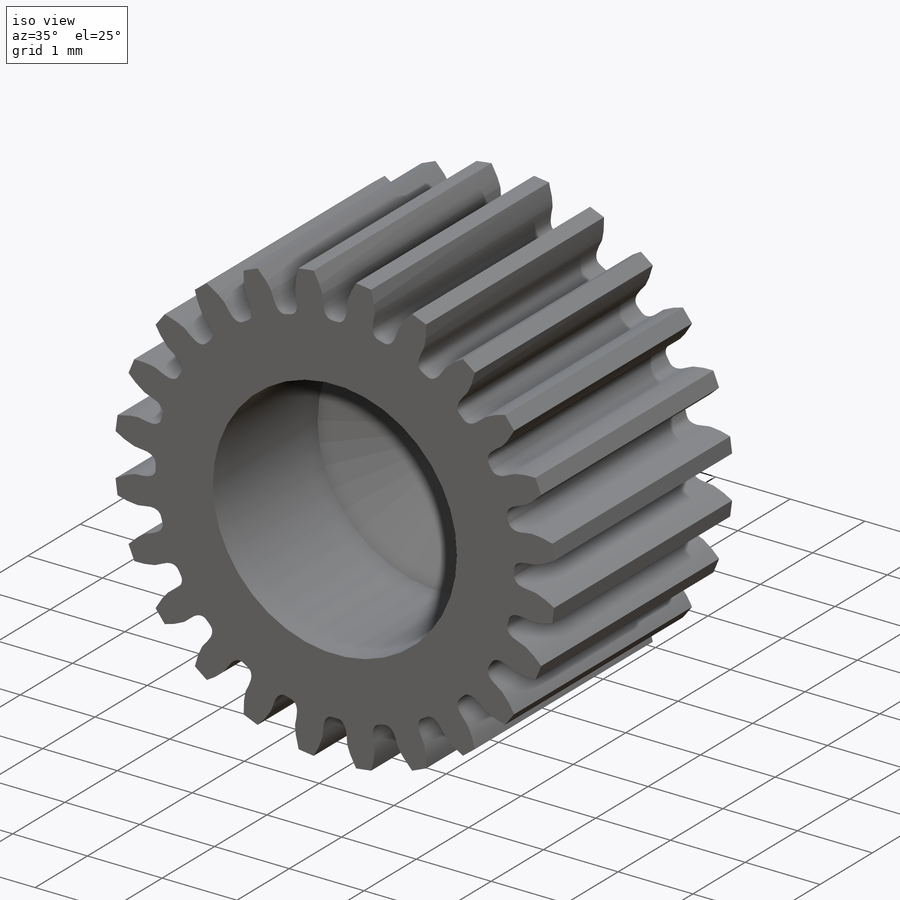
[diagram: iso view]
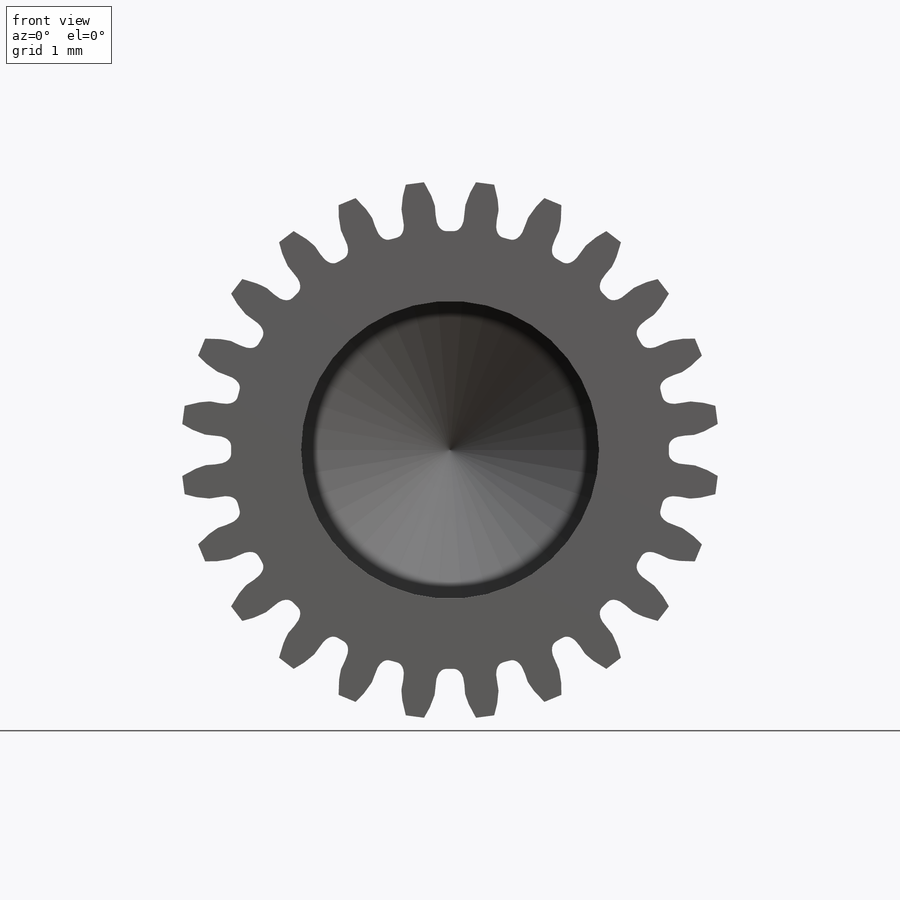
[diagram: front view]
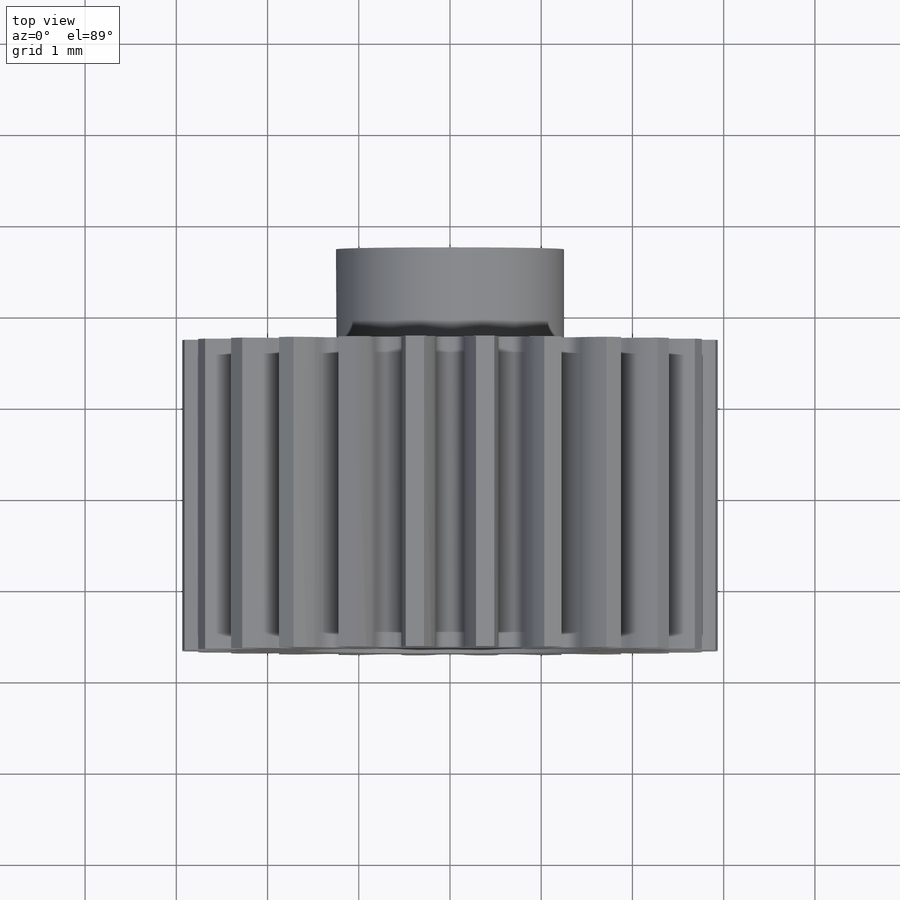
[diagram: top view]
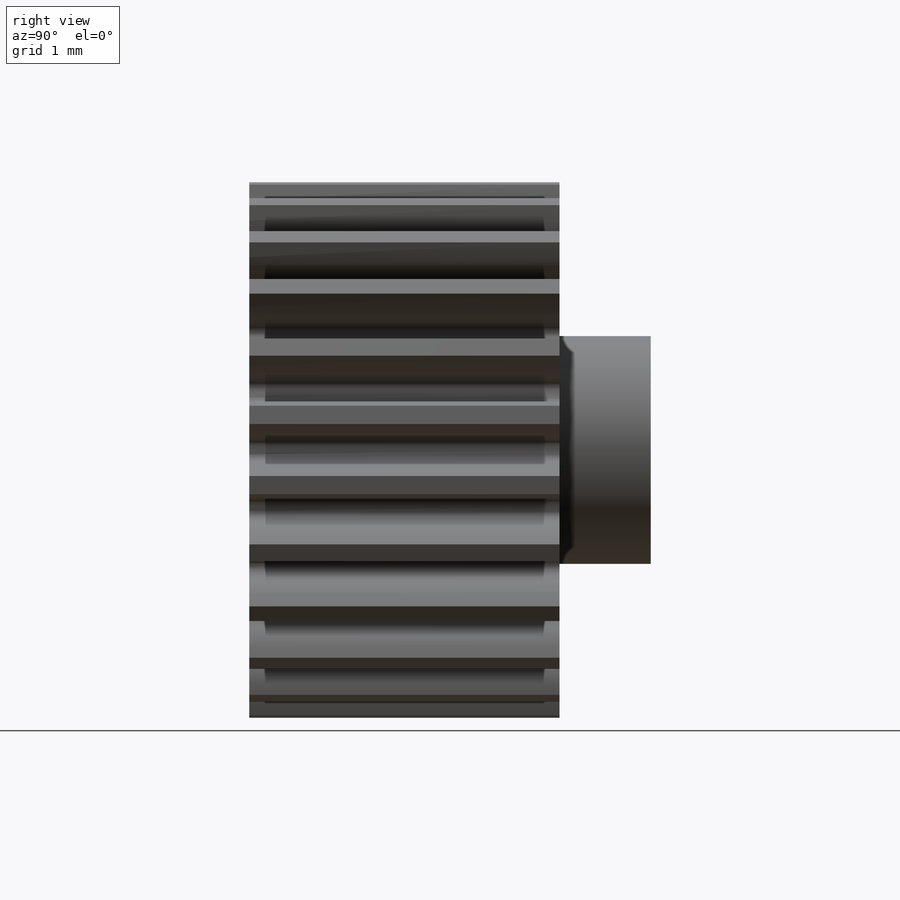
[diagram: right view]
SOLIDWORKS PART (.sldprt)
format: sldprt  version: not decoded by parser v0  size: 372,224 bytes
history: native  units: mm
features: sketch x5, plane x3, hole x2, material x1, extrude x1, cut_extrude x1, pattern_circular x1 (+9 scaffold rows collapsed)
feature tree (23):
  scaffold x9  (default folders/planes/origin — collapsed)
  material  "Material <sin especificar>"
  plane  "Alzado"
  plane  "Planta"
  plane  "Vista lateral"
  sketch  "Gear-BaseSketch"  dims[D1=~5.896429mm]
  extrude  "112.0 Diametral Pitch, 5,4429mm P.D."  Depth=3.4mm
  sketch  "Tooth-Sketch; Backlash: 0,0000mm"
  cut_extrude  "Tooth-Cut, Fine Pitch Involute 14.5 deg"  Depth=10mm
  pattern_circular  "Tooth Pattern, 24 / 24"  Count=24 Angle=15deg
  hole  "Taladro de margen para #42"  Depth=2mm  [1 undecoded]
  sketch  "Croquis4"
  sketch  "Croquis5"  dims[hole-wizard template sketch: 46 standard entries collapsed; hole parameters kept: c15.Diámetro de taladro=3.2639mm c15.Profundidad de taladro=2.0mm c15.D3=~14.816244mm c15.Ángulo de perforador=118.0deg]
  sketch  "Croquis6"  dims[D1=2.5mm]
  hole  "Saliente-Extruir2"  Diameter=1mm
decode coverage: 8 of 10 modeling features carry decoded parameters
note: ~ marks probable driven/reference dimensions
note: 1 parameter value undecoded
note: suppression state not decoded; provenance and decode notes live in map.json
